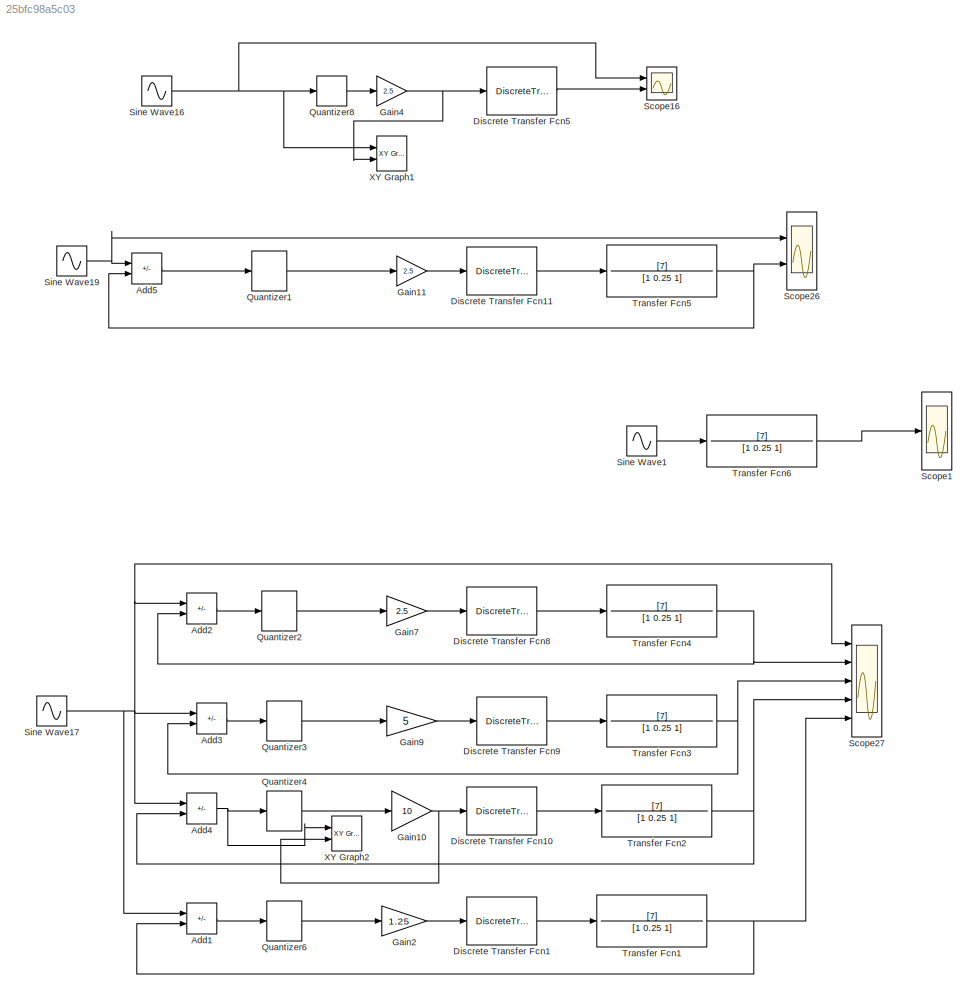
MODEL slx_25bfc98a5c03
KIND model
CONFIG AbsTol = auto
CONFIG EnableMultiTasking = off
CONFIG FixedStep = 10^-4
CONFIG MaxStep = auto
CONFIG MinStep = auto
CONFIG RelTol = 1e-3
CONFIG SampleTimeConstraint = Unconstrained
CONFIG SolverName = VariableStepAuto
CONFIG StartTime = 0.0
CONFIG StopTime = 50
BLOCK [Sum] Add1
  IconShape = rectangular
  Inputs = +-
  Ports = [2, 1]
BLOCK [Sum] Add2
  IconShape = rectangular
  Inputs = +-
  Ports = [2, 1]
BLOCK [Sum] Add3
  IconShape = rectangular
  Inputs = +-
  Ports = [2, 1]
BLOCK [Sum] Add4
  IconShape = rectangular
  Inputs = +-
  Ports = [2, 1]
BLOCK [Sum] Add5
  IconShape = rectangular
  Inputs = +-
  Ports = [2, 1]
BLOCK [DiscreteTransferFcn] Discrete Transfer Fcn1
  Denominator = [1 0]
  InputPortMap = u0
  Numerator = [1 -1]
  Ports = [1, 1]
  SampleTime = 0.05
BLOCK [DiscreteTransferFcn] Discrete Transfer Fcn10
  Denominator = [1 0]
  InputPortMap = u0
  Numerator = [1 -1]
  Ports = [1, 1]
  SampleTime = 0.05
BLOCK [DiscreteTransferFcn] Discrete Transfer Fcn11
  Denominator = [1 0]
  InputPortMap = u0
  Numerator = [1 -1]
  Ports = [1, 1]
  SampleTime = 0.05
BLOCK [DiscreteTransferFcn] Discrete Transfer Fcn5
  Commented = on
  Denominator = [1 0]
  InputPortMap = u0
  Numerator = [1 -1]
  Ports = [1, 1]
  SampleTime = 0.05
BLOCK [DiscreteTransferFcn] Discrete Transfer Fcn8
  Denominator = [1 0]
  InputPortMap = u0
  Numerator = [1 -1]
  Ports = [1, 1]
  SampleTime = 0.05
BLOCK [DiscreteTransferFcn] Discrete Transfer Fcn9
  Denominator = [1 0]
  InputPortMap = u0
  Numerator = [1 -1]
  Ports = [1, 1]
  SampleTime = 0.05
BLOCK [Gain] Gain10
  Gain = 10
BLOCK [Gain] Gain11
  Gain = 2.5
BLOCK [Gain] Gain2
  Gain = 1.25
BLOCK [Gain] Gain4
  Commented = on
  Gain = 2.5
BLOCK [Gain] Gain7
  Gain = 2.5
BLOCK [Gain] Gain9
  Gain = 5
BLOCK [Quantizer] Quantizer1
  QuantizationInterval = 2
BLOCK [Quantizer] Quantizer2
  QuantizationInterval = 2
BLOCK [Quantizer] Quantizer3
  QuantizationInterval = 1
BLOCK [Quantizer] Quantizer4
BLOCK [Quantizer] Quantizer6
  QuantizationInterval = 4
BLOCK [Quantizer] Quantizer8
  Commented = on
  QuantizationInterval = 2
BLOCK [Scope] Scope1
  Floating = off
  NumInputPorts = 3
  Ports = [3]
  ScopeSpecificationString = Simulink.scopes.TimeScopeBlockCfg('CurrentConfiguration', extmgr.ConfigurationSet(extmgr.Configuration('Core','General UI',true,'FigureColor',[1 1 1]),extmgr.Configuration('Core','Source UI',true),extmgr.Configuration('Sources','WiredSimulink',true,'DataLoggingVariableName','ScopeData1'),extmgr.Configuration('Visuals','Time Domain',true,'SerializedDisplays',{struct('MinYLimReal','-11.98695','MaxYL...<+1852ch>
BLOCK [Scope] Scope16
  Commented = on
  Floating = off
  NumInputPorts = 2
  Ports = [2]
  ScopeSpecificationString = Simulink.scopes.TimeScopeBlockCfg('CurrentConfiguration', extmgr.ConfigurationSet(extmgr.Configuration('Core','General UI',true,'FigureColor',[1 1 1]),extmgr.Configuration('Core','Source UI',true),extmgr.Configuration('Sources','WiredSimulink',true,'DataLoggingVariableName','ScopeData3'),extmgr.Configuration('Visuals','Time Domain',true,'SerializedDisplays',{struct('MinYLimReal','-6.25','MaxYLimRe...<+2319ch>
BLOCK [Scope] Scope26
  Floating = off
  NumInputPorts = 2
  Ports = [2]
  ScopeSpecificationString = Simulink.scopes.TimeScopeBlockCfg('CurrentConfiguration', extmgr.ConfigurationSet(extmgr.Configuration('Core','General UI',true,'FigureColor',[1 1 1]),extmgr.Configuration('Core','Source UI',true),extmgr.Configuration('Sources','WiredSimulink',true,'DataLoggingVariableName','ScopeData1'),extmgr.Configuration('Visuals','Time Domain',true,'SerializedDisplays',{struct('MinYLimReal','-6.25','MaxYLimRe...<+1822ch>
BLOCK [Scope] Scope27
  Floating = off
  NumInputPorts = 5
  Ports = [5]
  ScopeSpecificationString = Simulink.scopes.TimeScopeBlockCfg('CurrentConfiguration', extmgr.ConfigurationSet(extmgr.Configuration('Core','General UI',true,'FigureColor',[1 1 1]),extmgr.Configuration('Core','Source UI',true),extmgr.Configuration('Sources','WiredSimulink',true,'DataLoggingVariableName','ScopeData2'),extmgr.Configuration('Visuals','Time Domain',true,'SerializedDisplays',{struct('MinYLimReal','-6.25','MaxYLimRe...<+2258ch>
BLOCK [Sin] Sine Wave1
  Amplitude = 5*0.5
  Frequency = 3
  Ports = [0, 1]
  SampleTime = 0
BLOCK [Sin] Sine Wave16
  Amplitude = 5*1
  Commented = on
  Ports = [0, 1]
  SampleTime = 0
BLOCK [Sin] Sine Wave17
  Amplitude = 5*1
  Ports = [0, 1]
  SampleTime = 0
BLOCK [Sin] Sine Wave19
  Amplitude = 5*1
  Ports = [0, 1]
  SampleTime = 0
BLOCK [TransferFcn] Transfer Fcn1
  Denominator = [1 0.25 1]
  Numerator = [7]
BLOCK [TransferFcn] Transfer Fcn2
  Denominator = [1 0.25 1]
  Numerator = [7]
BLOCK [TransferFcn] Transfer Fcn3
  Denominator = [1 0.25 1]
  Numerator = [7]
BLOCK [TransferFcn] Transfer Fcn4
  Denominator = [1 0.25 1]
  Numerator = [7]
BLOCK [TransferFcn] Transfer Fcn5
  Denominator = [1 0.25 1]
  Numerator = [7]
BLOCK [TransferFcn] Transfer Fcn6
  Denominator = [1 0.25 1]
  Numerator = [7]
BLOCK [Reference] XY Graph1  REF=simulink/Sinks/XY Graph
  Commented = on
  Ports = [2]
  SourceBlock = simulink/Sinks/XY Graph
  SourceProductBaseCode = SL
  SourceType = XY scope.
BLOCK [Reference] XY Graph2  REF=simulink/Sinks/XY Graph
  Ports = [2]
  SourceBlock = simulink/Sinks/XY Graph
  SourceProductBaseCode = SL
  SourceType = XY scope.
LINE Add1:1 -> Quantizer6:1
LINE Add2:1 -> Quantizer2:1
LINE Add3:1 -> Quantizer3:1
NET Add4:1 -> Quantizer4:1, XY Graph2:1
LINE Add5:1 -> Quantizer1:1
LINE Discrete Transfer Fcn10:1 -> Transfer Fcn2:1
LINE Discrete Transfer Fcn11:1 -> Transfer Fcn5:1
LINE Discrete Transfer Fcn1:1 -> Transfer Fcn1:1
LINE Discrete Transfer Fcn5:1 -> Scope16:2
LINE Discrete Transfer Fcn8:1 -> Transfer Fcn4:1
LINE Discrete Transfer Fcn9:1 -> Transfer Fcn3:1
NET Gain10:1 -> Discrete Transfer Fcn10:1, XY Graph2:2
LINE Gain11:1 -> Discrete Transfer Fcn11:1
LINE Gain2:1 -> Discrete Transfer Fcn1:1
NET Gain4:1 -> Discrete Transfer Fcn5:1, XY Graph1:2
LINE Gain7:1 -> Discrete Transfer Fcn8:1
LINE Gain9:1 -> Discrete Transfer Fcn9:1
LINE Quantizer1:1 -> Gain11:1
LINE Quantizer2:1 -> Gain7:1
LINE Quantizer3:1 -> Gain9:1
LINE Quantizer4:1 -> Gain10:1
LINE Quantizer6:1 -> Gain2:1
LINE Quantizer8:1 -> Gain4:1
NET Sine Wave16:1 -> Quantizer8:1, Scope16:1, XY Graph1:1
NET Sine Wave17:1 -> Add1:1, Add2:1, Add3:1, Add4:1, Scope27:1
NET Sine Wave19:1 -> Add5:1, Scope26:1
LINE Sine Wave1:1 -> Transfer Fcn6:1
NET Transfer Fcn1:1 -> Add1:2, Scope27:5
NET Transfer Fcn2:1 -> Add4:2, Scope27:4
NET Transfer Fcn3:1 -> Add3:2, Scope27:3
NET Transfer Fcn4:1 -> Add2:2, Scope27:2
NET Transfer Fcn5:1 -> Add5:2, Scope26:2
LINE Transfer Fcn6:1 -> Scope1:2
note: NET lines group one-source signal fan-out (src -> all destinations, sorted); 1:1 wires keep LINE
